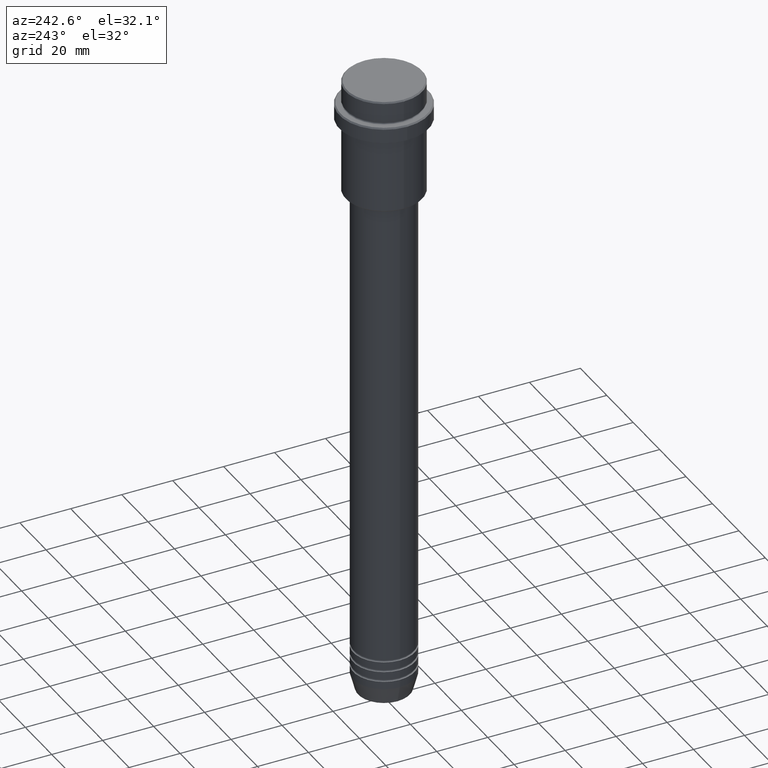
[diagram: clean part render]
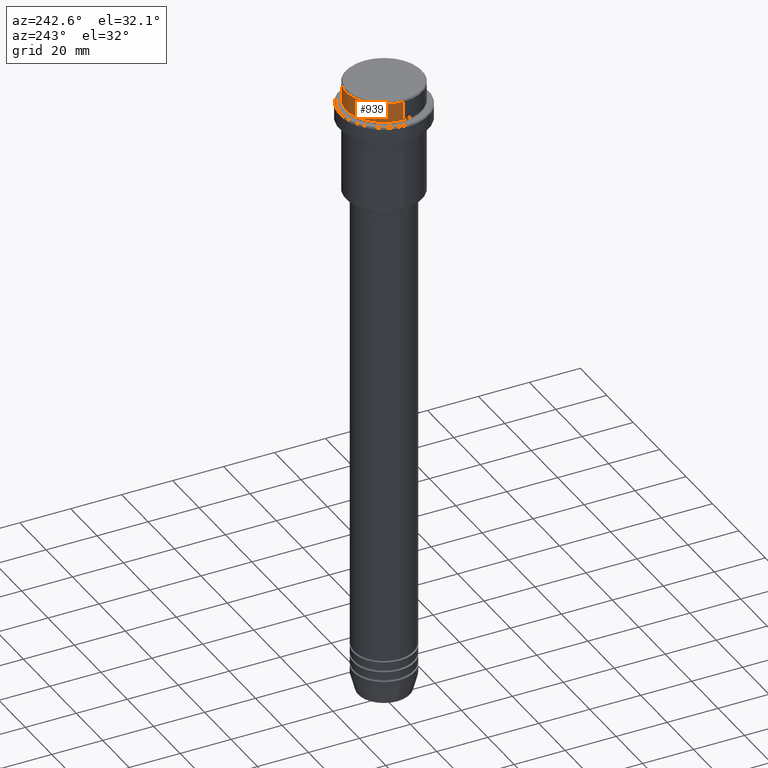
[diagram: same view with one face highlighted and labeled with its STEP entity id]
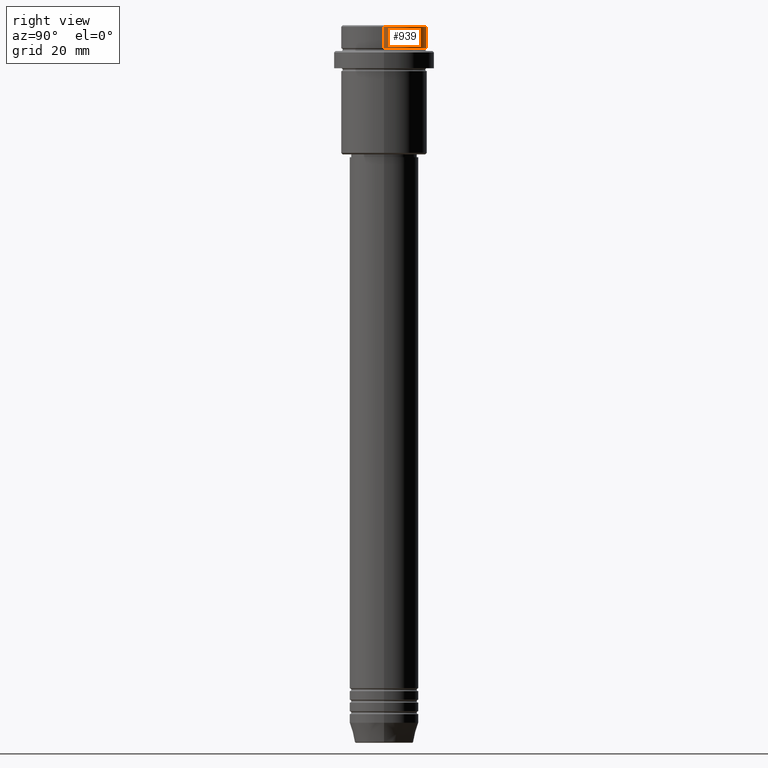
[diagram: same view with one face highlighted and labeled with its STEP entity id]
A machine part, auxiliary view. The second image highlights one B-rep face of the part: STEP entity #939.
A second angle (right view) of the same face is appended — the face is thin or edge-on in the first view.
In plain terms, the highlighted cylindrical surface (partial cylindrical patch) has radius 15 mm, axis along (-0, -0, 1).
Its self-contained STEP definition (entity closure, byte-faithful):
#26 = CARTESIAN_POINT ( 'NONE',  ( -15.00000000000000000, 1.836970198721029589E-15, 0.000000000000000000 ) ) ;
#28 = LINE ( 'NONE', #908, #1360 ) ;
#37 = CARTESIAN_POINT ( 'NONE',  ( 15.00000000000000000, 0.000000000000000000, -0.5000000000000108802 ) ) ;
#40 = DIRECTION ( 'NONE',  ( 1.000000000000000000, 0.000000000000000000, 0.000000000000000000 ) ) ;
#52 = CARTESIAN_POINT ( 'NONE',  ( 0.000000000000000000, 0.000000000000000000, 0.000000000000000000 ) ) ;
#96 = DIRECTION ( 'NONE',  ( 0.000000000000000000, 0.000000000000000000, -1.000000000000000000 ) ) ;
#130 = CIRCLE ( 'NONE', #1290, 15.00000000000000000 ) ;
#171 = DIRECTION ( 'NONE',  ( 1.000000000000000000, 0.000000000000000000, 0.000000000000000000 ) ) ;
#172 = CARTESIAN_POINT ( 'NONE',  ( 15.00000000000000000, 0.000000000000000000, -7.999999999999998224 ) ) ;
#315 = ORIENTED_EDGE ( 'NONE', *, *, #511, .T. ) ;
#336 = DIRECTION ( 'NONE',  ( -0.000000000000000000, -0.000000000000000000, 1.000000000000000000 ) ) ;
#403 = ORIENTED_EDGE ( 'NONE', *, *, #528, .F. ) ;
#413 = CARTESIAN_POINT ( 'NONE',  ( 0.000000000000000000, 0.000000000000000000, -0.5000000000000108802 ) ) ;
#511 = EDGE_CURVE ( 'NONE', #728, #824, #1043, .T. ) ;
#528 = EDGE_CURVE ( 'NONE', #728, #635, #28, .T. ) ;
#564 = CARTESIAN_POINT ( 'NONE',  ( -15.00000000000000000, 1.836970198721029589E-15, -7.999999999999998224 ) ) ;
#567 = FACE_OUTER_BOUND ( 'NONE', #702, .T. ) ;
#623 = DIRECTION ( 'NONE',  ( 1.000000000000000000, 0.000000000000000000, 0.000000000000000000 ) ) ;
#635 = VERTEX_POINT ( 'NONE', #37 ) ;
#665 = EDGE_CURVE ( 'NONE', #824, #1027, #879, .T. ) ;
#685 = DIRECTION ( 'NONE',  ( -0.000000000000000000, -0.000000000000000000, 1.000000000000000000 ) ) ;
#702 = EDGE_LOOP ( 'NONE', ( #315, #1248, #928, #403 ) ) ;
#728 = VERTEX_POINT ( 'NONE', #172 ) ;
#780 = AXIS2_PLACEMENT_3D ( 'NONE', #52, #685, #40 ) ;
#810 = DIRECTION ( 'NONE',  ( -0.000000000000000000, -0.000000000000000000, 1.000000000000000000 ) ) ;
#824 = VERTEX_POINT ( 'NONE', #564 ) ;
#855 = AXIS2_PLACEMENT_3D ( 'NONE', #1024, #1236, #171 ) ;
#879 = LINE ( 'NONE', #26, #903 ) ;
#903 = VECTOR ( 'NONE', #336, 1000.000000000000000 ) ;
#908 = CARTESIAN_POINT ( 'NONE',  ( 15.00000000000000000, 0.000000000000000000, 0.000000000000000000 ) ) ;
#910 = CARTESIAN_POINT ( 'NONE',  ( -15.00000000000000000, 1.836970198721029589E-15, -0.5000000000000108802 ) ) ;
#928 = ORIENTED_EDGE ( 'NONE', *, *, #1326, .T. ) ;
#939 = ADVANCED_FACE ( 'NONE', ( #567 ), #1334, .T. ) ;
#1024 = CARTESIAN_POINT ( 'NONE',  ( 0.000000000000000000, 0.000000000000000000, -7.999999999999998224 ) ) ;
#1027 = VERTEX_POINT ( 'NONE', #910 ) ;
#1043 = CIRCLE ( 'NONE', #855, 15.00000000000000000 ) ;
#1236 = DIRECTION ( 'NONE',  ( -0.000000000000000000, -0.000000000000000000, 1.000000000000000000 ) ) ;
#1248 = ORIENTED_EDGE ( 'NONE', *, *, #665, .T. ) ;
#1290 = AXIS2_PLACEMENT_3D ( 'NONE', #413, #96, #623 ) ;
#1326 = EDGE_CURVE ( 'NONE', #1027, #635, #130, .T. ) ;
#1334 = CYLINDRICAL_SURFACE ( 'NONE', #780, 15.00000000000000000 ) ;
#1360 = VECTOR ( 'NONE', #810, 1000.000000000000000 ) ;